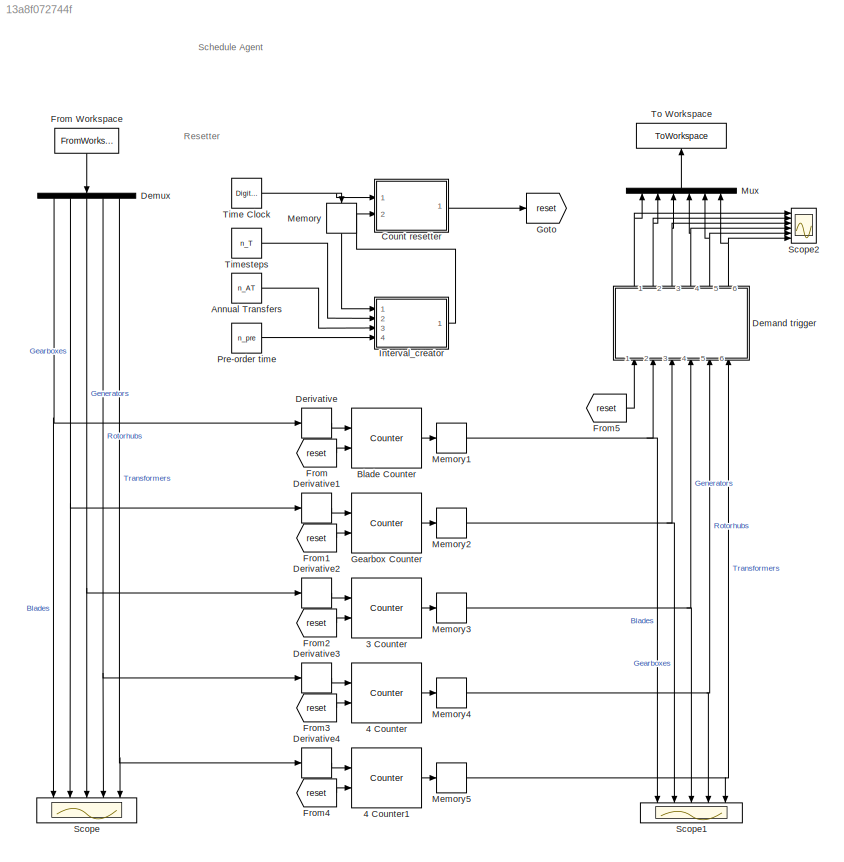
MODEL slx_13a8f072744f
KIND model
CONFIG AbsTol = auto
CONFIG EnableMultiTasking = off
CONFIG FixedStep = auto
CONFIG MaxStep = auto
CONFIG MinStep = auto
CONFIG RelTol = 1e-3
CONFIG SampleTimeConstraint = Unconstrained
CONFIG Solver = VariableStepAuto
CONFIG SolverName = VariableStepAuto
CONFIG StartTime = 0.0
CONFIG StopTime = n_T
BLOCK [Reference] 3 Counter  REF=dspswit3/Counter
  Ports = [2, 1]
  SourceBlock = dspswit3/Counter
  SourceProductBaseCode = DS
  SourceProductName = DSP System Toolbox
  SourceType = Counter
BLOCK [Reference] 4 Counter  REF=dspswit3/Counter
  Ports = [2, 1]
  SourceBlock = dspswit3/Counter
  SourceProductBaseCode = DS
  SourceProductName = DSP System Toolbox
  SourceType = Counter
BLOCK [Reference] 4 Counter1  REF=dspswit3/Counter
  Ports = [2, 1]
  SourceBlock = dspswit3/Counter
  SourceProductBaseCode = DS
  SourceProductName = DSP System Toolbox
  SourceType = Counter
BLOCK [Constant] Annual Transfers
  Value = n_AT
BLOCK [Reference] Blade Counter  REF=dspswit3/Counter
  Ports = [2, 1]
  SourceBlock = dspswit3/Counter
  SourceProductBaseCode = DS
  SourceProductName = DSP System Toolbox
  SourceType = Counter
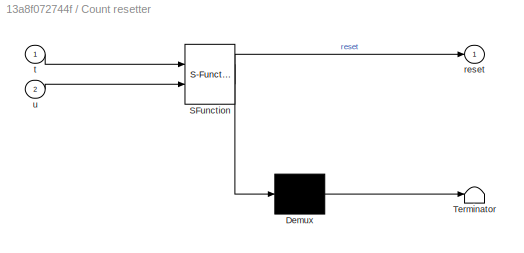
BLOCK [SubSystem] Count resetter
  ErrorFcn = Stateflow.Translate.translate
  PermitHierarchicalResolution = ExplicitOnly
  Ports = [2, 1]
  RequestExecContextInheritance = off
  SFBlockType = MATLAB Function
  TreatAsAtomicUnit = on
BLOCK [Demux] Count resetter/ Demux 
  Outputs = 1
  Ports = [1, 1]
BLOCK [S-Function] Count resetter/ SFunction 
  EnableBusSupport = on
  FunctionName = sf_sfun
  PortCounts = [2 2]
  Ports = [2, 2]
  SFcnIsStateOwnerBlock = off
  SFunctionDeploymentMode = off
  Tag = Stateflow S-Function Schedule_generator 2
BLOCK [Terminator] Count resetter/ Terminator 
BLOCK [Outport] Count resetter/reset
  IconDisplay = Port number
BLOCK [Inport] Count resetter/t
  IconDisplay = Port number
BLOCK [Inport] Count resetter/u
  IconDisplay = Port number
  Port = 2
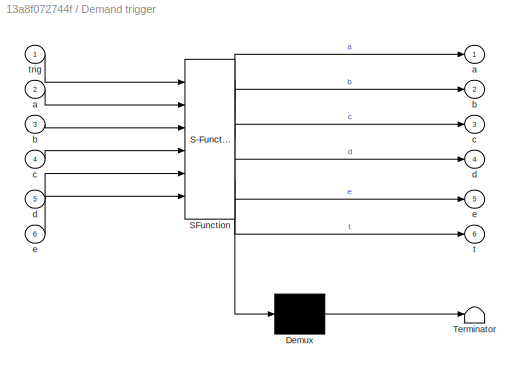
BLOCK [SubSystem] Demand trigger
  ErrorFcn = Stateflow.Translate.translate
  PermitHierarchicalResolution = ExplicitOnly
  Ports = [6, 6]
  RequestExecContextInheritance = off
  SFBlockType = MATLAB Function
  TreatAsAtomicUnit = on
BLOCK [Demux] Demand trigger/ Demux 
  Outputs = 1
  Ports = [1, 1]
BLOCK [S-Function] Demand trigger/ SFunction 
  EnableBusSupport = on
  FunctionName = sf_sfun
  PortCounts = [6 7]
  Ports = [6, 7]
  SFcnIsStateOwnerBlock = off
  SFunctionDeploymentMode = off
  Tag = Stateflow S-Function Schedule_generator 3
BLOCK [Terminator] Demand trigger/ Terminator 
BLOCK [Outport] Demand trigger/a
  IconDisplay = Port number
BLOCK [Inport] Demand trigger/a 
  IconDisplay = Port number
  Port = 2
BLOCK [Outport] Demand trigger/b
  IconDisplay = Port number
  Port = 2
BLOCK [Inport] Demand trigger/b 
  IconDisplay = Port number
  Port = 3
BLOCK [Outport] Demand trigger/c
  IconDisplay = Port number
  Port = 3
BLOCK [Inport] Demand trigger/c 
  IconDisplay = Port number
  Port = 4
BLOCK [Outport] Demand trigger/d
  IconDisplay = Port number
  Port = 4
BLOCK [Inport] Demand trigger/d 
  IconDisplay = Port number
  Port = 5
BLOCK [Outport] Demand trigger/e
  IconDisplay = Port number
  Port = 5
BLOCK [Inport] Demand trigger/e 
  IconDisplay = Port number
  Port = 6
BLOCK [Outport] Demand trigger/t
  IconDisplay = Port number
  Port = 6
BLOCK [Inport] Demand trigger/trig
  IconDisplay = Port number
BLOCK [Demux] Demux
  DisplayOption = bar
  Outputs = 5
  Ports = [1, 5]
BLOCK [Derivative] Derivative
BLOCK [Derivative] Derivative1
BLOCK [Derivative] Derivative2
BLOCK [Derivative] Derivative3
BLOCK [Derivative] Derivative4
BLOCK [From] From
  GotoTag = reset
BLOCK [FromWorkspace] From Workspace
  SampleTime = 0
  VariableName = Failure_data
  ZeroCross = on
BLOCK [From] From1
  GotoTag = reset
BLOCK [From] From2
  GotoTag = reset
BLOCK [From] From3
  GotoTag = reset
BLOCK [From] From4
  GotoTag = reset
BLOCK [From] From5
  GotoTag = reset
BLOCK [Reference] Gearbox Counter  REF=dspswit3/Counter
  Ports = [2, 1]
  SourceBlock = dspswit3/Counter
  SourceProductBaseCode = DS
  SourceProductName = DSP System Toolbox
  SourceType = Counter
BLOCK [Goto] Goto
  GotoTag = reset
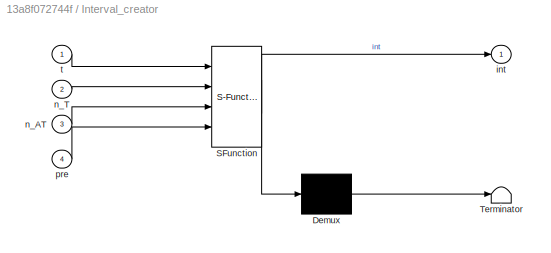
BLOCK [SubSystem] Interval_creator
  ErrorFcn = Stateflow.Translate.translate
  PermitHierarchicalResolution = ExplicitOnly
  Ports = [4, 1]
  RequestExecContextInheritance = off
  SFBlockType = MATLAB Function
  TreatAsAtomicUnit = on
BLOCK [Demux] Interval_creator/ Demux 
  Outputs = 1
  Ports = [1, 1]
BLOCK [S-Function] Interval_creator/ SFunction 
  EnableBusSupport = on
  FunctionName = sf_sfun
  PortCounts = [4 2]
  Ports = [4, 2]
  SFcnIsStateOwnerBlock = off
  SFunctionDeploymentMode = off
  Tag = Stateflow S-Function Schedule_generator 1
BLOCK [Terminator] Interval_creator/ Terminator 
BLOCK [Outport] Interval_creator/int
  IconDisplay = Port number
BLOCK [Inport] Interval_creator/n_AT
  IconDisplay = Port number
  Port = 3
BLOCK [Inport] Interval_creator/n_T
  IconDisplay = Port number
  Port = 2
BLOCK [Inport] Interval_creator/pre
  IconDisplay = Port number
  Port = 4
BLOCK [Inport] Interval_creator/t
  IconDisplay = Port number
BLOCK [Memory] Memory
BLOCK [Memory] Memory1
BLOCK [Memory] Memory2
BLOCK [Memory] Memory3
BLOCK [Memory] Memory4
BLOCK [Memory] Memory5
BLOCK [Mux] Mux
  DisplayOption = bar
  Inputs = 6
  Ports = [6, 1]
BLOCK [Constant] Pre-order time
  Value = n_pre
BLOCK [Scope] Scope
  Floating = off
  NumInputPorts = 5
  Ports = [5]
  ScopeSpecificationString = Simulink.scopes.TimeScopeBlockCfg('CurrentConfiguration', extmgr.ConfigurationSet(extmgr.Configuration('Core','General UI',true),extmgr.Configuration('Core','Source UI',true),extmgr.Configuration('Sources','WiredSimulink',true),extmgr.Configuration('Visuals','Time Domain',true,'SerializedDisplays',{struct('MinYLimReal','-6.5','MaxYLimReal','58.5','YLabelReal','','MinYLimMag','0.00000','MaxYLimMag'...<+1475ch>
BLOCK [Scope] Scope1
  Floating = off
  NumInputPorts = 5
  Ports = [5]
  ScopeSpecificationString = Simulink.scopes.TimeScopeBlockCfg('CurrentConfiguration', extmgr.ConfigurationSet(extmgr.Configuration('Core','General UI',true),extmgr.Configuration('Core','Source UI',true),extmgr.Configuration('Sources','WiredSimulink',true,'DataLoggingVariableName','ScopeData1'),extmgr.Configuration('Visuals','Time Domain',true,'SerializedDisplays',{struct('MinYLimReal','-1.125','MaxYLimReal','10.125','YLabelR...<+1569ch>
BLOCK [Scope] Scope2
  Floating = off
  NumInputPorts = 6
  Ports = [6]
  ScopeSpecificationString = Simulink.scopes.TimeScopeBlockCfg('CurrentConfiguration', extmgr.ConfigurationSet(extmgr.Configuration('Core','General UI',true,'FigureColor',[1 1 1]),extmgr.Configuration('Core','Source UI',true),extmgr.Configuration('Sources','WiredSimulink',true,'DataLoggingVariableName','ScopeData2'),extmgr.Configuration('Visuals','Time Domain',true,'SerializedDisplays',{struct('MinYLimReal','-1.5','MaxYLimRea...<+2264ch>
BLOCK [DigitalClock] Time Clock
BLOCK [Constant] Timesteps
  Value = n_T
BLOCK [ToWorkspace] To Workspace
  FixptAsFi = on
  MaxDataPoints = inf
  Ports = [1]
  SampleTime = 1
  Save2DSignal = 3-D array (concatenate along third dimension)
  SaveFormat = Timeseries
  VariableName = Schedule_data
ANNOTATION (root): Schedule Agent
ANNOTATION (root): Resetter
LINE 3 Counter:1 -> Memory3:1
LINE 4 Counter1:1 -> Memory5:1
LINE 4 Counter:1 -> Memory4:1
LINE Annual Transfers:1 -> Interval_creator:3
LINE Blade Counter:1 -> Memory1:1
LINE Count resetter:1 -> Goto:1
NET Demand trigger:1 -> Mux:1, Scope2:1
NET Demand trigger:2 -> Mux:2, Scope2:2
NET Demand trigger:3 -> Mux:3, Scope2:3
NET Demand trigger:4 -> Mux:4, Scope2:4
NET Demand trigger:5 -> Mux:5, Scope2:5
NET Demand trigger:6 -> Mux:6, Scope2:6
NET Demux:1 -> Derivative:1, Scope:1
NET Demux:2 -> Derivative1:1, Scope:2
NET Demux:3 -> Derivative2:1, Scope:3
NET Demux:4 -> Derivative3:1, Scope:4
NET Demux:5 -> Derivative4:1, Scope:5
LINE Derivative1:1 -> Gearbox Counter:1
LINE Derivative2:1 -> 3 Counter:1
LINE Derivative3:1 -> 4 Counter:1
LINE Derivative4:1 -> 4 Counter1:1
LINE Derivative:1 -> Blade Counter:1
LINE From Workspace:1 -> Demux:1
LINE From1:1 -> Gearbox Counter:2
LINE From2:1 -> 3 Counter:2
LINE From3:1 -> 4 Counter:2
LINE From4:1 -> 4 Counter1:2
LINE From5:1 -> Demand trigger:1
LINE From:1 -> Blade Counter:2
LINE Gearbox Counter:1 -> Memory2:1
LINE Interval_creator:1 -> Count resetter:2
NET Memory1:1 -> Demand trigger:2, Scope1:1
NET Memory2:1 -> Demand trigger:3, Scope1:2
NET Memory3:1 -> Demand trigger:4, Scope1:3
NET Memory4:1 -> Demand trigger:5, Scope1:4
NET Memory5:1 -> Demand trigger:6, Scope1:5
LINE Memory:1 -> Interval_creator:1
LINE Mux:1 -> To Workspace:1
LINE Pre-order time:1 -> Interval_creator:4
NET Time Clock:1 -> Count resetter:1, Memory:1
LINE Timesteps:1 -> Interval_creator:2
note: NET lines group one-source signal fan-out (src -> all destinations, sorted); 1:1 wires keep LINE
CHART Interval_creator states=1 transitions=1
  STATE_LABEL 'eML_blk_kernel()'
  STATE_LABEL 'SCRIPT:\nfunction int = fcn(t,n_T,n_AT,pre)\n\nint = ((n_T/n_AT)*fix(t/(n_T/n_AT))+(n_T/n_AT))-pre;\n\n\n% u = (n_T/n_AT)'
CHART Count resetter states=1 transitions=1
  STATE_LABEL 'eML_blk_kernel()'
  STATE_LABEL 'SCRIPT:\nfunction reset  = fcn(t,u)\nif t == u\n    %y = f;\n    reset = 1; \nelse\n    %y = 0;\n    reset = 0;\nend'
CHART Demand trigger states=1 transitions=1
  STATE_LABEL 'eML_blk_kernel()'
  STATE_LABEL 'SCRIPT:\nfunction [a,b,c,d,e,t] = fcn(trig,a,b,c,d,e)\nif trig == 1;\n    a = a;\n    b = b;\n    c = c;\n    d = d;\n    e = e;\n    t = a + b + c + d + e;\nelse\n    a = 0;\n    b = 0;\n    c = 0;\n    d = 0;\n    e = 0;\n    t = 0;\nend'
